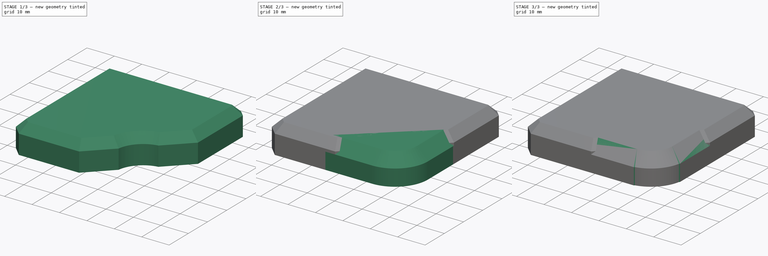
[diagram: build sequence overview — one tinted view per stage of 3, left to right]
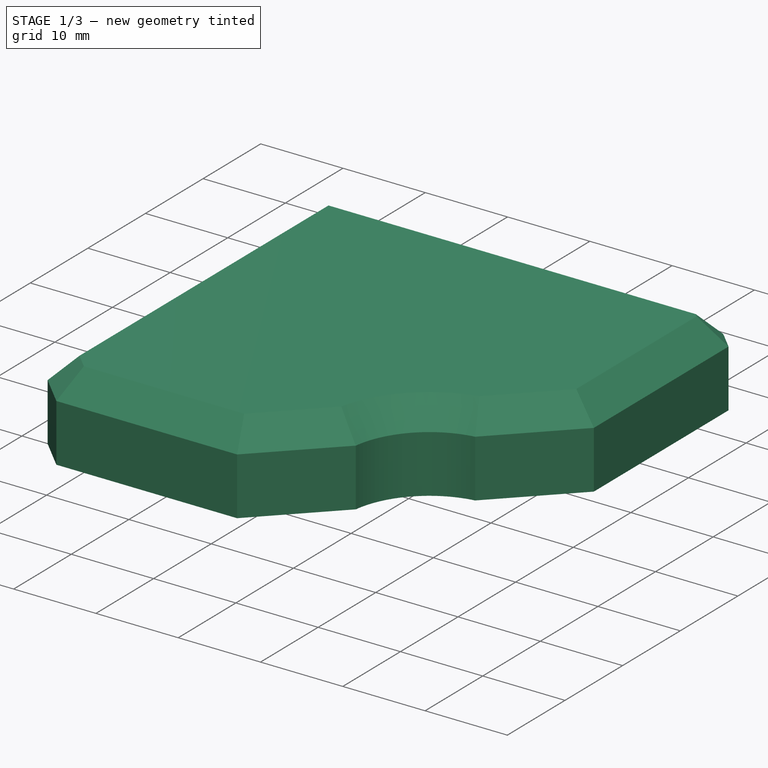
[diagram: stage 1 of 3 — iso view after this stage's code; geometry added in this stage tinted green]
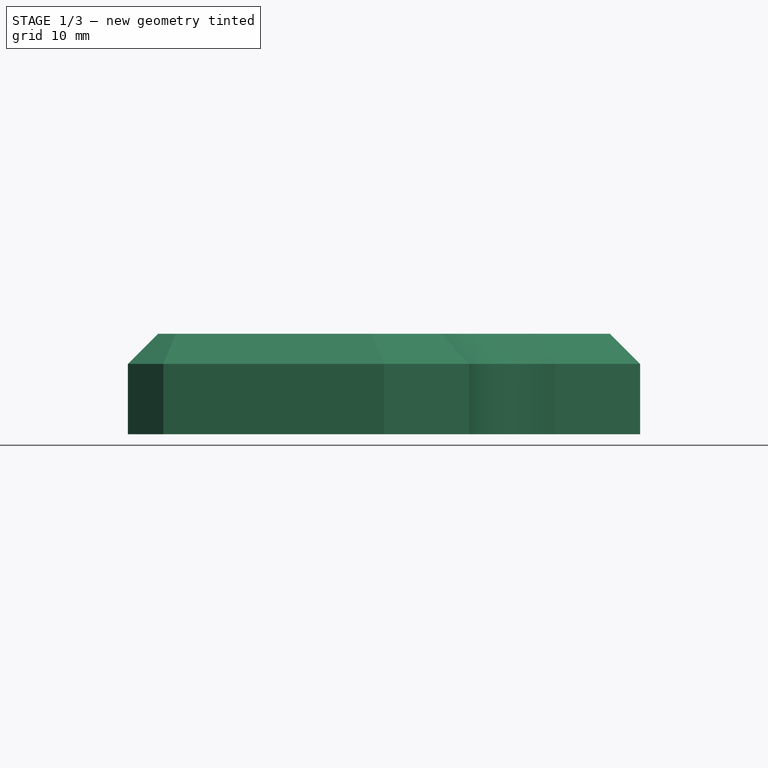
[diagram: stage 1 of 3 — front view after this stage's code; geometry added in this stage tinted green]
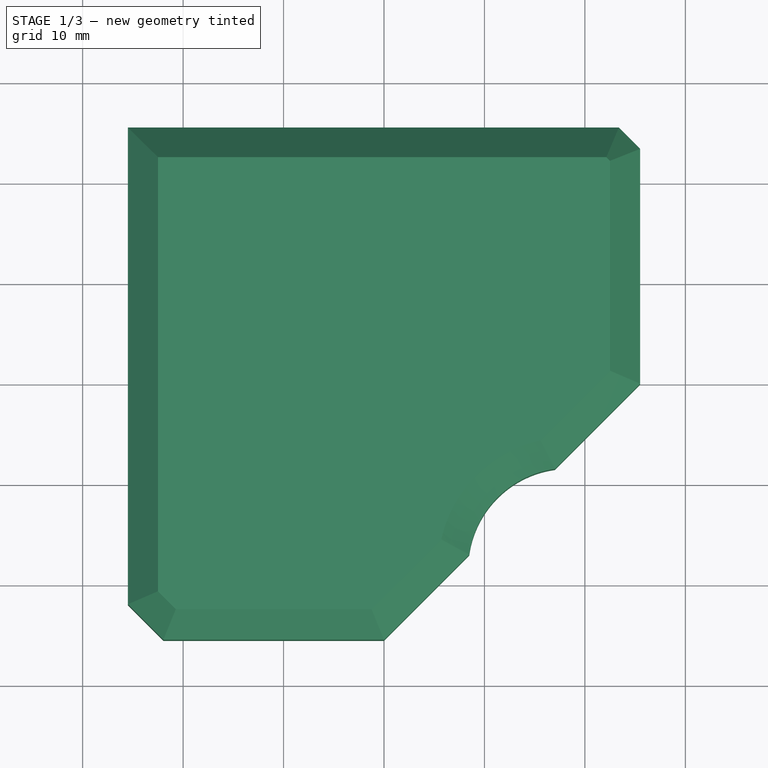
[diagram: stage 1 of 3 — top view after this stage's code; geometry added in this stage tinted green]
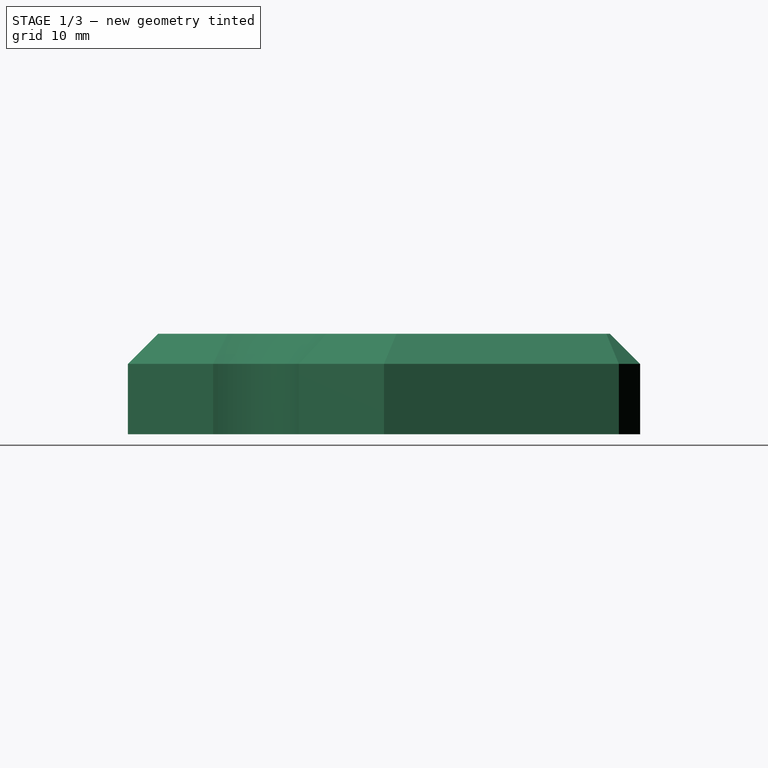
[diagram: stage 1 of 3 — right view after this stage's code; geometry added in this stage tinted green]
FCSTD DOCUMENT  (FreeCAD 0.21R33771 (Git))
Label: Silicon-Joint
License: All rights reserved
LicenseURL: https://en.wikipedia.org/wiki/All_rights_reserved
objects: Sketcher::SketchObject×3, PartDesign::Pad×3, PartDesign::Chamfer×3, PartDesign::Body×3
note: 18 computed .brp shape members not serialized (recipe doc carries the construction recipe); baked Part::Feature solids carry a one-line shape summary decoded from their .brp

FEATURE [PartDesign::Body] Body001  label="4Body"
  Group = -> [Sketch001,Pad001,Chamfer001]
  Origin = -> Origin001
  Tip = -> Chamfer001
FEATURE [Sketcher::SketchObject] Sketch002
  FullyConstrained = true
  MapMode = 5
  Support = -> [XY_Plane002]
  expr: Constraints[30] = .Constraints.Length
  expr: Constraints[33] = .Constraints.Length / 2
  sketch-geometry (16):
    g0: LineSegment StartX=-25.5 StartY=25.5 StartZ=0 EndX=-25.5 EndY=-21.9645 EndZ=0
    g1: LineSegment StartX=-25.5 StartY=25.5 StartZ=0 EndX=23.3787 EndY=25.5 EndZ=0
    g2: LineSegment StartX=23.3787 StartY=25.5 StartZ=0 EndX=25.5 EndY=25.5 EndZ=0
    g3: LineSegment StartX=25.5 StartY=25.5 StartZ=0 EndX=25.5 EndY=23.3787 EndZ=0
    g4: LineSegment StartX=25.5 StartY=23.3787 StartZ=0 EndX=23.3787 EndY=25.5 EndZ=0
    g5: LineSegment StartX=25.5 StartY=23.3787 StartZ=0 EndX=25.5 EndY=0 EndZ=0
    g6: LineSegment StartX=-25.5 StartY=-21.9645 StartZ=0 EndX=-25.5 EndY=-25.5 EndZ=0
    g7: LineSegment StartX=-25.5 StartY=-25.5 StartZ=0 EndX=-21.9645 EndY=-25.5 EndZ=0
    g8: LineSegment StartX=-21.9645 StartY=-25.5 StartZ=0 EndX=-25.5 EndY=-21.9645 EndZ=0
    g9: LineSegment StartX=-21.9645 StartY=-25.5 StartZ=0 EndX=0 EndY=-25.5 EndZ=0
    g10: LineSegment StartX=0 StartY=-25.5 StartZ=0 EndX=25.5 EndY=-25.5 EndZ=0
    g11: LineSegment StartX=25.5 StartY=-25.5 StartZ=0 EndX=25.5 EndY=0 EndZ=0
    g12: LineSegment StartX=0 StartY=-25.5 StartZ=0 EndX=8.48528 EndY=-17.0147 EndZ=0
    g13: LineSegment StartX=25.5 StartY=0 StartZ=0 EndX=17.0147 EndY=-8.48528 EndZ=0
    g14: LineSegment StartX=17.0147 StartY=-8.48528 StartZ=0 EndX=8.48528 EndY=-17.0147 EndZ=0
    g15: ArcOfCircle CenterX=18.3902 CenterY=-18.3902 CenterZ=0 NormalX=0 NormalY=0 NormalZ=1 AngleXU=0 Radius=10 StartAngle=1.70878 EndAngle=3.0036
  constraints (44):
    c: Vertical(g0)
    c: Coincident(g1,g0)
    c: Horizontal(g1)
    c: Coincident(g2,g1)
    c: Horizontal(g2)
    c: Coincident(g3,g2)
    c: Vertical(g3)
    c: Coincident(g4,g3)
    c: Coincident(g4,g1)
    c: Coincident(g5,g4)
    c: Vertical(g5)
    c: Coincident(g6,g0)
    c: Vertical(g6)
    c: Coincident(g7,g6)
    c: Horizontal(g7)
    c: Coincident(g8,g7)
    c: Coincident(g8,g0)
    c: Coincident(g9,g8)
    c: Horizontal(g9)
    c: Coincident(g10,g9)
    c: Horizontal(g10)
    c: Vertical(g11)
    c: Coincident(g11,g5)
    c: Equal(g10,g11)
    c: Equal(g3,g2)
    c: Equal(g7,g6)
    c: Coincident(g11,g10)
    c: Distance(g4) = 3
    c: Distance(g8) = 5
    c: DistanceY(g6,g0) = 51  'Length'
    c: DistanceX(g0,g2) = 51
    c: Coincident(g12,g9)
    c: Coincident(g13,g5)
    c: DistanceX(g6,g9) = 25.5
    c: Equal(g12,g13)
    c: Coincident(g14,g13)
    c: Coincident(g14,g12)
    c: Coincident(g15,g12)
    c: Coincident(g15,g13)
    c: Symmetric(g6,g2,g-1)
    c: Parallel(g12,g14)
    c: Parallel(g14,g13)
    c: Radius(g15) = 10
    c: Distance(g12) = 12
FEATURE [PartDesign::Pad] Pad002
  Direction = (0,0,1)
  Length = 10
  Length2 = 10
  Profile = -> Sketch002
  ReferenceAxis = -> Sketch002 [N_Axis]
  Type = 0
FEATURE [PartDesign::Chamfer] Chamfer002
  Angle = 45
  Base = -> Pad002 [Edge4,Edge27,Edge25,Edge22,Edge19,Edge16,Edge13,Edge10,Edge7]
  BaseFeature = -> Pad002
  ChamferType = 0
  FlipDirection = false
  Size = 3
  Size2 = 1
  SupportTransform = false
  UseAllEdges = false
FEATURE [PartDesign::Body] Body002  label="3Body"
  Group = -> [Sketch002,Pad002,Chamfer002]
  Origin = -> Origin002
  Tip = -> Chamfer002
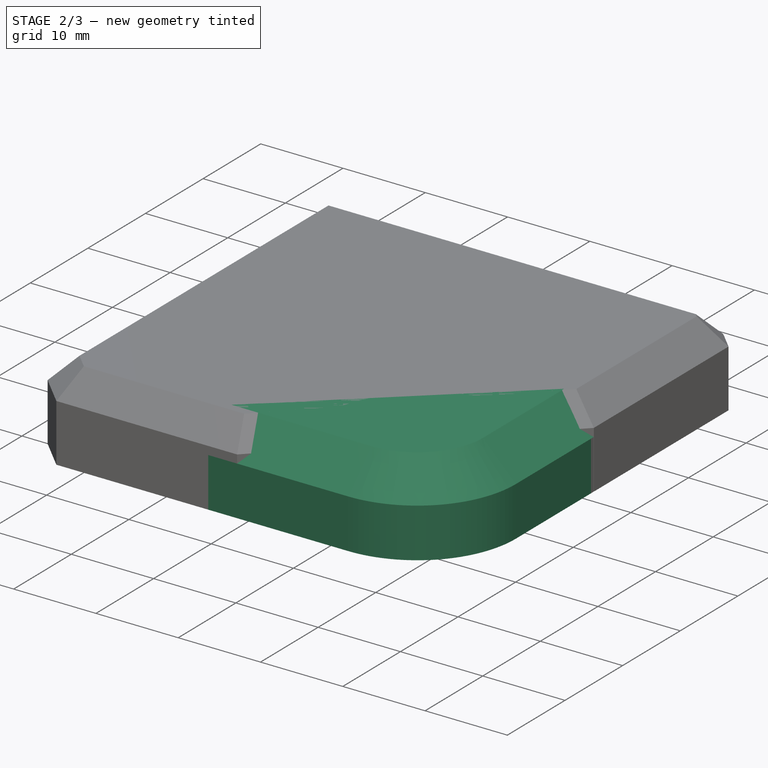
[diagram: stage 2 of 3 — iso view after this stage's code; geometry added in this stage tinted green]
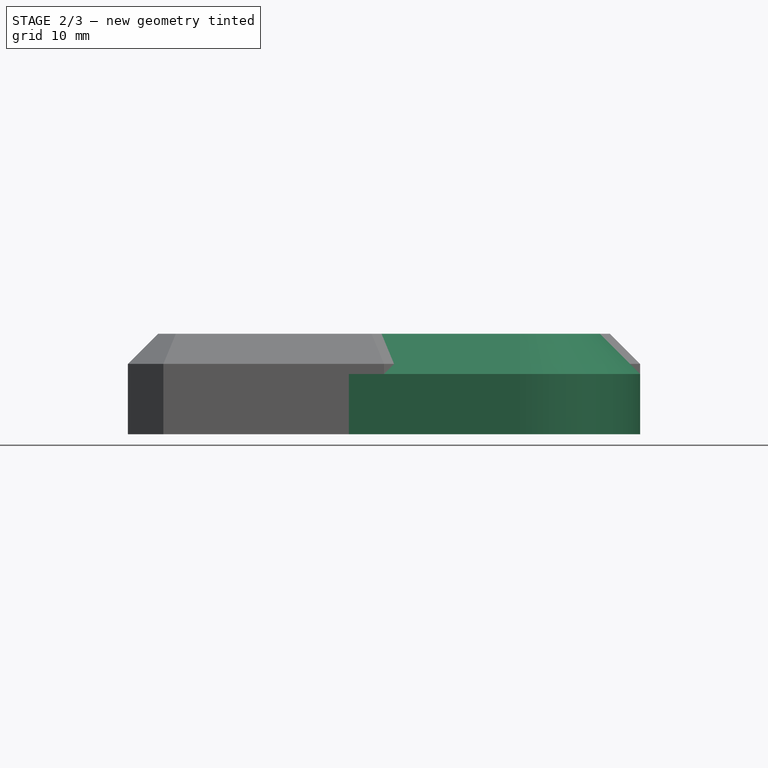
[diagram: stage 2 of 3 — front view after this stage's code; geometry added in this stage tinted green]
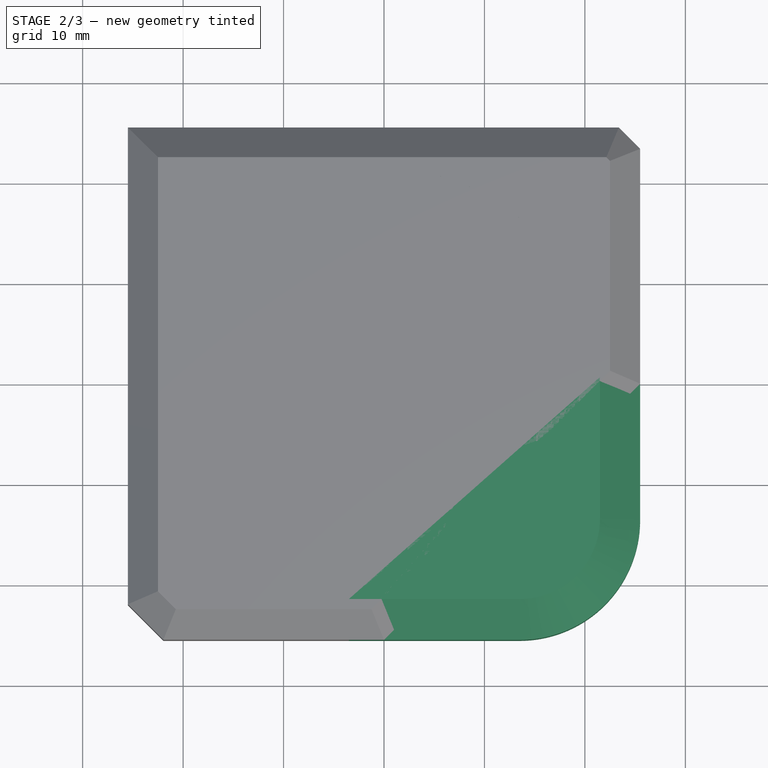
[diagram: stage 2 of 3 — top view after this stage's code; geometry added in this stage tinted green]
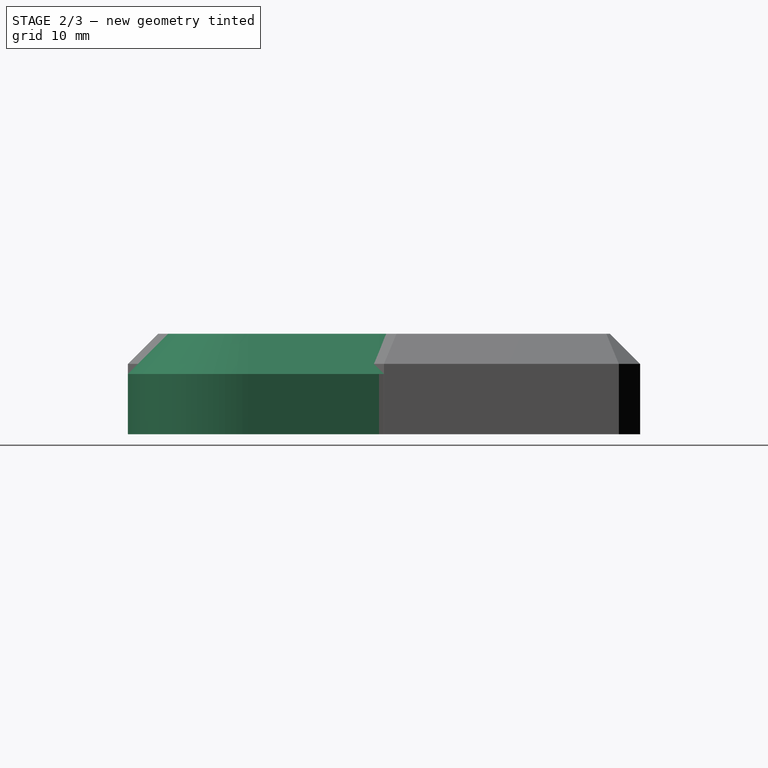
[diagram: stage 2 of 3 — right view after this stage's code; geometry added in this stage tinted green]
FEATURE [PartDesign::Body] Body  label="2Body"
  Group = -> [Sketch,Pad,Chamfer]
  Origin = -> Origin
  Tip = -> Chamfer
FEATURE [Sketcher::SketchObject] Sketch001
  FullyConstrained = true
  MapMode = 5
  Support = -> [XY_Plane001]
  sketch-geometry (16):
    g0: LineSegment StartX=-25.5 StartY=-3.5 StartZ=0 EndX=-25.5 EndY=-25.5 EndZ=0
    g1: LineSegment StartX=-25.5 StartY=-25.5 StartZ=0 EndX=-3.5 EndY=-25.5 EndZ=0
    g2: LineSegment StartX=13.5 StartY=-25.5 StartZ=0 EndX=25.5 EndY=-25.5 EndZ=0
    g3: LineSegment StartX=25.5 StartY=-25.5 StartZ=0 EndX=25.5 EndY=-13.5 EndZ=0
    g4: LineSegment StartX=25.5 StartY=-0.5 StartZ=0 EndX=25.5 EndY=25.5 EndZ=0
    g5: LineSegment StartX=25.5 StartY=25.5 StartZ=0 EndX=-0.5 EndY=25.5 EndZ=0
    g6: LineSegment StartX=-21.9645 StartY=25.5 StartZ=0 EndX=-25.5 EndY=25.5 EndZ=0
    g7: LineSegment StartX=-3.5 StartY=-25.5 StartZ=0 EndX=13.5 EndY=-25.5 EndZ=0
    g8: LineSegment StartX=25.5 StartY=-13.5 StartZ=0 EndX=25.5 EndY=-0.5 EndZ=0
    g9: LineSegment StartX=-0.5 StartY=25.5 StartZ=0 EndX=-21.9645 EndY=25.5 EndZ=0
    g10: ArcOfCircle CenterX=-3.5 CenterY=-3.5 CenterZ=0 NormalX=0 NormalY=0 NormalZ=1 AngleXU=0 Radius=22 StartAngle=3.14159 EndAngle=4.71239
    g11: ArcOfCircle CenterX=13.5 CenterY=-13.5 CenterZ=0 NormalX=0 NormalY=0 NormalZ=1 AngleXU=0 Radius=12 StartAngle=4.71239 EndAngle=6.28319
    g12: ArcOfCircle CenterX=-0.5 CenterY=-0.5 CenterZ=0 NormalX=0 NormalY=0 NormalZ=1 AngleXU=0 Radius=26 StartAngle=-1.066e-13 EndAngle=1.5708
    g13: LineSegment StartX=-25.5 StartY=25.5 StartZ=0 EndX=-25.5 EndY=21.9645 EndZ=0
    g14: LineSegment StartX=-21.9645 StartY=25.5 StartZ=0 EndX=-25.5 EndY=21.9645 EndZ=0
    g15: LineSegment StartX=-25.5 StartY=21.9645 StartZ=0 EndX=-25.5 EndY=-3.5 EndZ=0
  constraints (43):
    c: Vertical(g0)
    c: Coincident(g1,g0)
    c: Horizontal(g1)
    c: Horizontal(g2)
    c: Coincident(g3,g2)
    c: Vertical(g3)
    c: Vertical(g4)
    c: Coincident(g5,g4)
    c: Horizontal(g5)
    c: Horizontal(g6)
    c: Equal(g0,g1)
    c: Equal(g2,g3)
    c: Equal(g4,g5)
    c: Coincident(g7,g1)
    c: Coincident(g7,g2)
    c: Horizontal(g7)
    c: Coincident(g8,g3)
    c: Coincident(g8,g4)
    c: Vertical(g8)
    c: Coincident(g9,g5)
    c: Coincident(g9,g6)
    c: Horizontal(g9)
    c: Tangent(g10,g7) = -1.5708
    c: Coincident(g10,g0) = -1.5708
    c: Coincident(g11,g8)
    c: Tangent(g11,g7) = -1.5708
    c: Coincident(g12,g9)
    c: Tangent(g12,g8) = -1.5708
    c: Radius(g12) = 26
    c: Radius(g11) = 12
    c: Radius(g10) = 22
    c: DistanceX(g0,g2) = 51
    c: DistanceY(g2,g4) = 51
    c: Coincident(g13,g6)
    c: Vertical(g13)
    c: Coincident(g14,g9)
    c: Coincident(g14,g13)
    c: Coincident(g15,g14)
    c: Coincident(g15,g10)
    c: Vertical(g15)
    c: Equal(g13,g6)
    c: Distance(g14) = 5
    c: Symmetric(g0,g4,g-1)
FEATURE [PartDesign::Pad] Pad001
  Direction = (0,0,1)
  Length = 10
  Length2 = 10
  Profile = -> Sketch001
  ReferenceAxis = -> Sketch001 [N_Axis]
  Type = 0
FEATURE [PartDesign::Chamfer] Chamfer001
  Angle = 45
  Base = -> Pad001 [Edge19,Edge16,Edge13,Edge10,Edge7,Edge4,Edge24,Edge22]
  BaseFeature = -> Pad001
  ChamferType = 0
  FlipDirection = false
  Size = 4
  Size2 = 1
  SupportTransform = false
  UseAllEdges = false
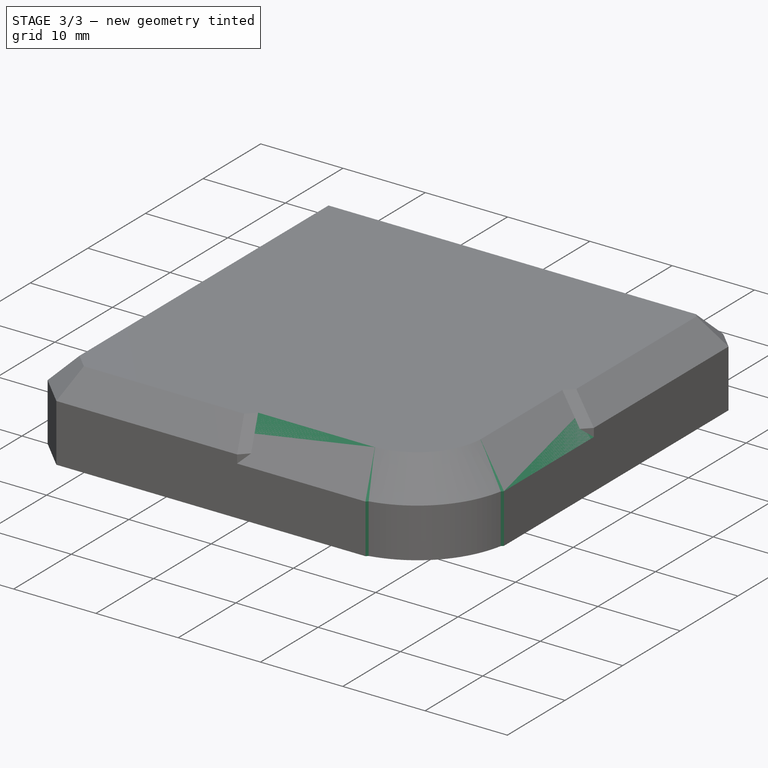
[diagram: stage 3 of 3 — iso view after this stage's code; geometry added in this stage tinted green]
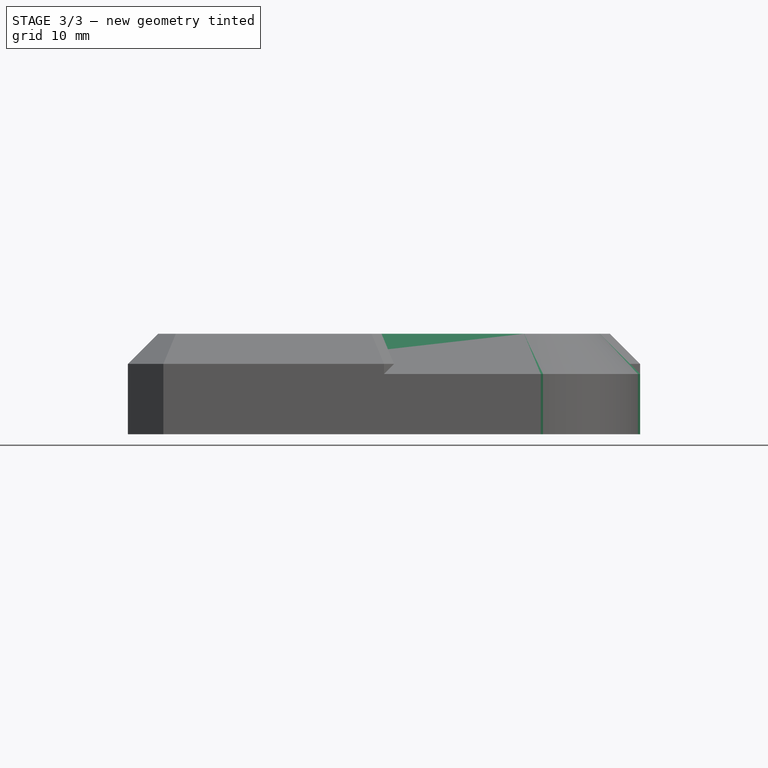
[diagram: stage 3 of 3 — front view after this stage's code; geometry added in this stage tinted green]
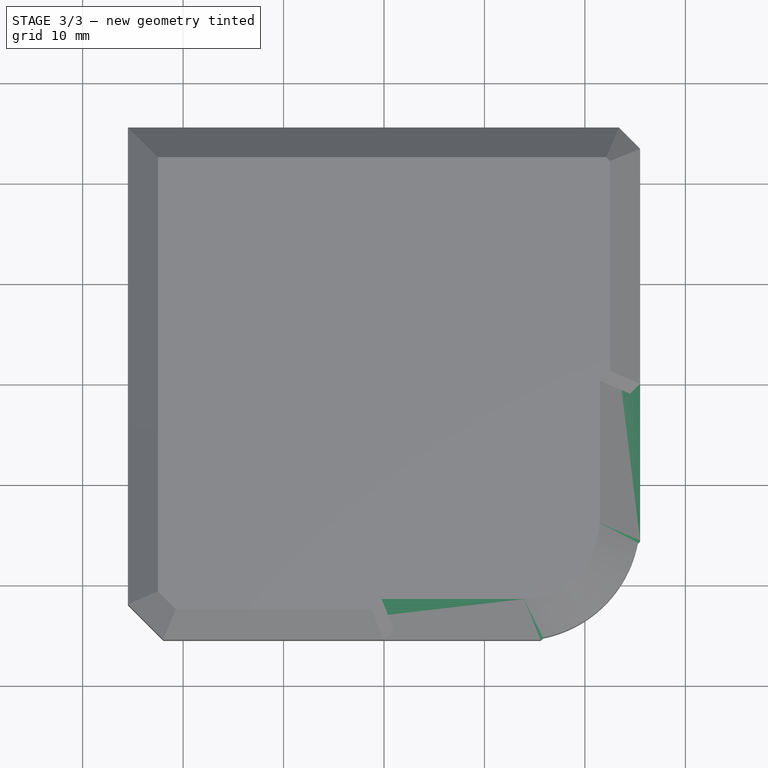
[diagram: stage 3 of 3 — top view after this stage's code; geometry added in this stage tinted green]
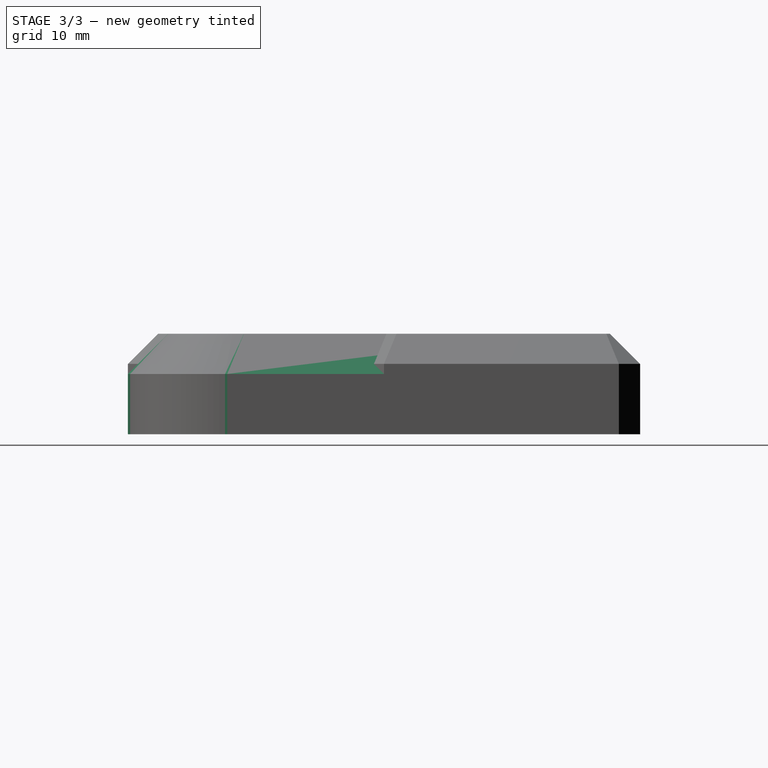
[diagram: stage 3 of 3 — right view after this stage's code; geometry added in this stage tinted green]
FEATURE [Sketcher::SketchObject] Sketch
  FullyConstrained = true
  MapMode = 5
  Support = -> [XY_Plane]
  sketch-geometry (17):
    g0: GeomPoint X=0 Y=0 Z=0
    g1: LineSegment StartX=-25.5 StartY=19.8431 StartZ=0 EndX=-25.5 EndY=-21.2574 EndZ=0
    g2: LineSegment StartX=-21.2574 StartY=-25.5 StartZ=0 EndX=15.6005 EndY=-25.5 EndZ=0
    g3: LineSegment StartX=25.5 StartY=-15.6005 StartZ=0 EndX=25.5 EndY=18.4289 EndZ=0
    g4: LineSegment StartX=-19.8431 StartY=25.5 StartZ=0 EndX=18.4289 EndY=25.5 EndZ=0
    g5: LineSegment StartX=-19.8431 StartY=25.5 StartZ=0 EndX=-25.5 EndY=19.8431 EndZ=0
    g6: LineSegment StartX=-25.5 StartY=-21.2574 StartZ=0 EndX=-21.2574 EndY=-25.5 EndZ=0
    g7: LineSegment StartX=15.6005 StartY=-25.5 StartZ=0 EndX=25.5 EndY=-15.6005 EndZ=0
    g8: LineSegment StartX=18.4289 StartY=25.5 StartZ=0 EndX=25.5 EndY=18.4289 EndZ=0
    g9: LineSegment StartX=-21.2574 StartY=-25.5 StartZ=0 EndX=-25.5 EndY=-25.5 EndZ=0
    g10: LineSegment StartX=-25.5 StartY=-21.2574 StartZ=0 EndX=-25.5 EndY=-25.5 EndZ=0
    g11: LineSegment StartX=25.5 StartY=-15.6005 StartZ=0 EndX=25.5 EndY=-25.5 EndZ=0
    g12: LineSegment StartX=25.5 StartY=-25.5 StartZ=0 EndX=15.6005 EndY=-25.5 EndZ=0
    g13: LineSegment StartX=18.4289 StartY=25.5 StartZ=0 EndX=25.5 EndY=25.5 EndZ=0
    g14: LineSegment StartX=25.5 StartY=25.5 StartZ=0 EndX=25.5 EndY=18.4289 EndZ=0
    g15: LineSegment StartX=-19.8431 StartY=25.5 StartZ=0 EndX=-25.5 EndY=25.5 EndZ=0
    g16: LineSegment StartX=-25.5 StartY=25.5 StartZ=0 EndX=-25.5 EndY=19.8431 EndZ=0
  constraints (44):
    c: Coincident(g0,g-1)
    c: Coincident(g5,g4)
    c: Coincident(g5,g1)
    c: Distance(g5) = 8
    c: Coincident(g6,g1)
    c: Coincident(g6,g2)
    c: Distance(g6) = 6
    c: Coincident(g7,g2)
    c: Coincident(g7,g3)
    c: Distance(g7) = 14
    c: Coincident(g8,g4)
    c: Coincident(g8,g3)
    c: Distance(g8) = 10
    c: Horizontal(g2)
    c: Horizontal(g4)
    c: Vertical(g1)
    c: Vertical(g3)
    c: Coincident(g9,g2)
    c: Horizontal(g9)
    c: Coincident(g10,g1)
    c: Coincident(g10,g9)
    c: Vertical(g10)
    c: Equal(g9,g10)
    c: Coincident(g11,g3)
    c: Vertical(g11)
    c: Coincident(g12,g11)
    c: Coincident(g12,g2)
    c: Horizontal(g12)
    c: Equal(g12,g11)
    c: Coincident(g13,g4)
    c: Horizontal(g13)
    c: Coincident(g14,g13)
    c: Coincident(g14,g3)
    c: Vertical(g14)
    c: Equal(g14,g13)
    c: Coincident(g15,g4)
    c: Horizontal(g15)
    c: Coincident(g16,g1)
    c: Vertical(g16)
    c: Equal(g16,g15)
    c: DistanceX(g9,g11) = 51
    c: DistanceY(g11,g13) = 51
    c: Symmetric(g13,g9,g0)
    c: Coincident(g16,g15)
FEATURE [PartDesign::Pad] Pad
  Direction = (0,0,1)
  Length = 10
  Length2 = 10
  Profile = -> Sketch
  ReferenceAxis = -> Sketch [N_Axis]
  Type = 0
FEATURE [PartDesign::Chamfer] Chamfer
  Angle = 45
  Base = -> Pad [Edge13,Edge10,Edge7,Edge4,Edge24,Edge22,Edge19,Edge16]
  BaseFeature = -> Pad
  ChamferType = 0
  FlipDirection = false
  Size = 4
  Size2 = 1
  SupportTransform = false
  UseAllEdges = false
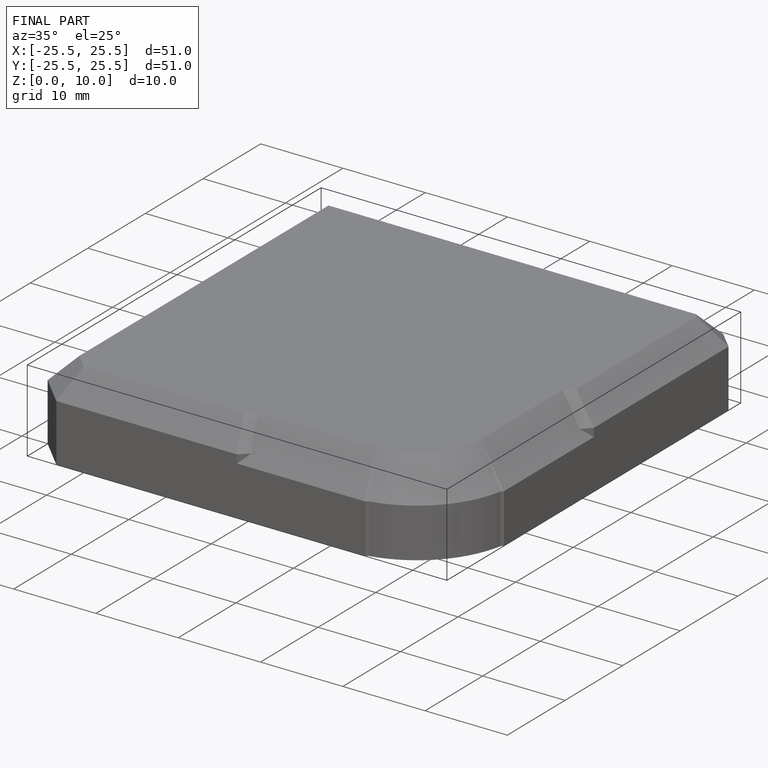
[diagram: finished part — iso view with bounding-box wireframe]
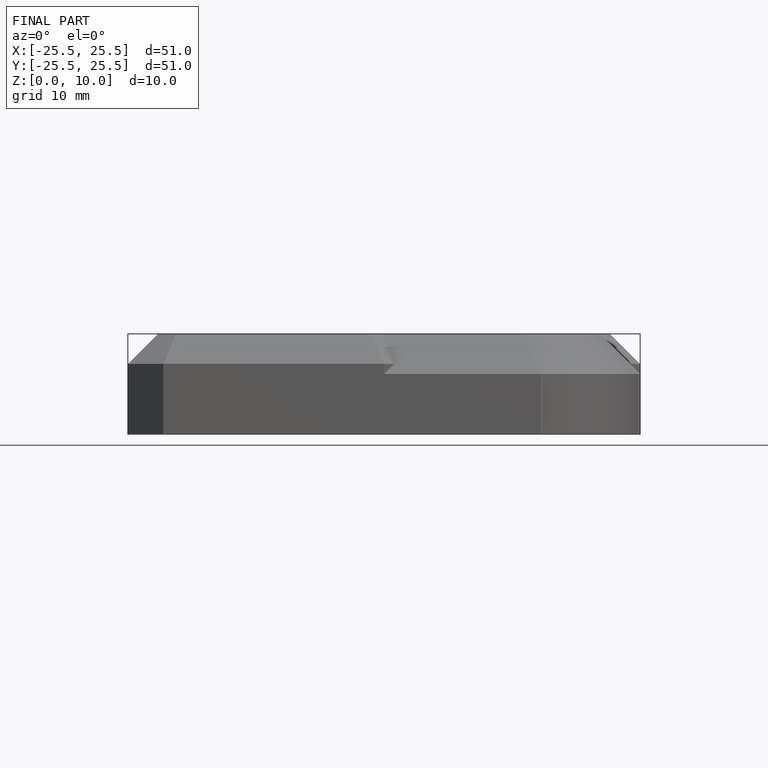
[diagram: finished part — front view with bounding-box wireframe]
